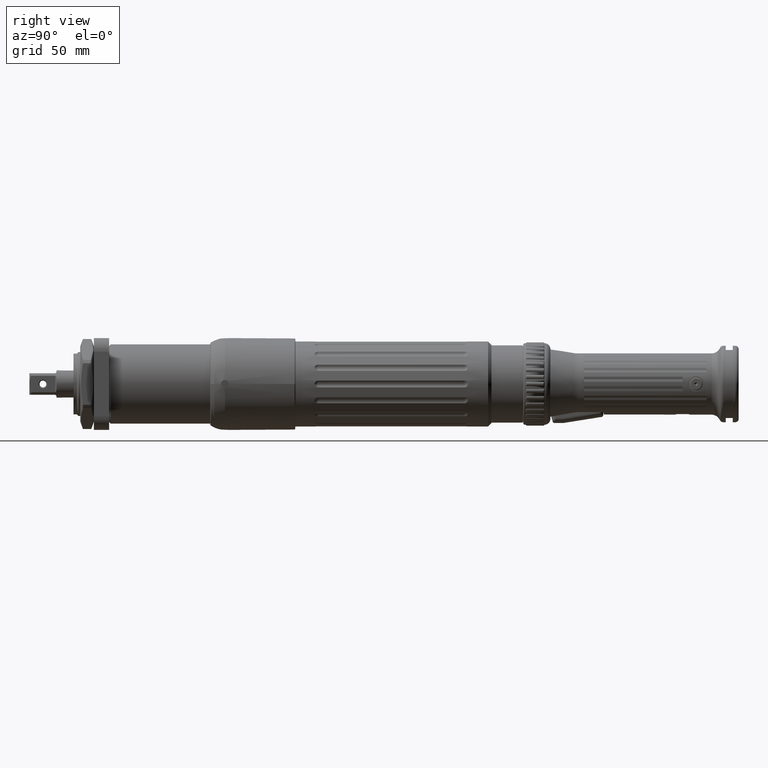
[diagram: clean part render]
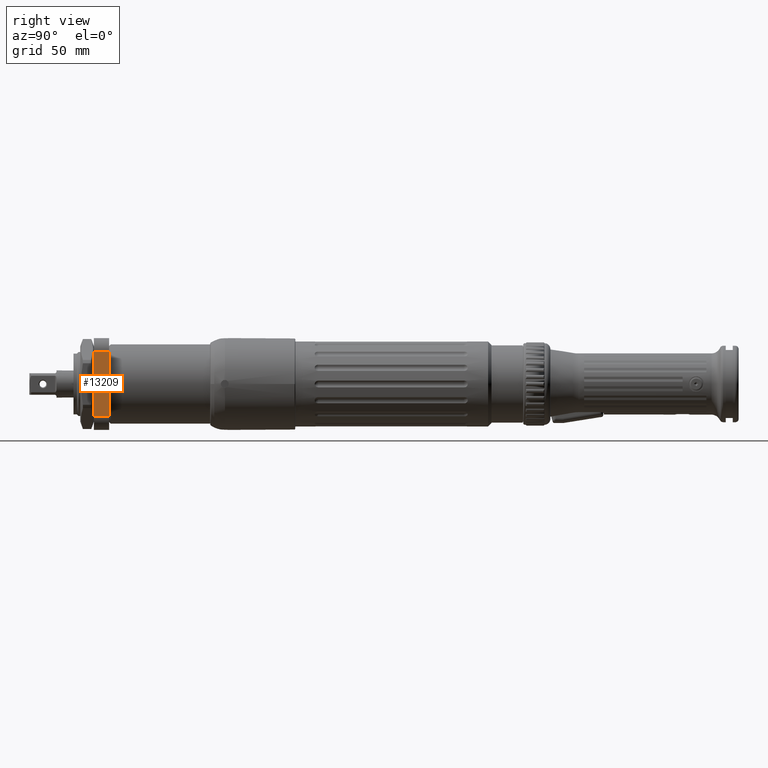
[diagram: same view with one face highlighted and labeled with its STEP entity id]
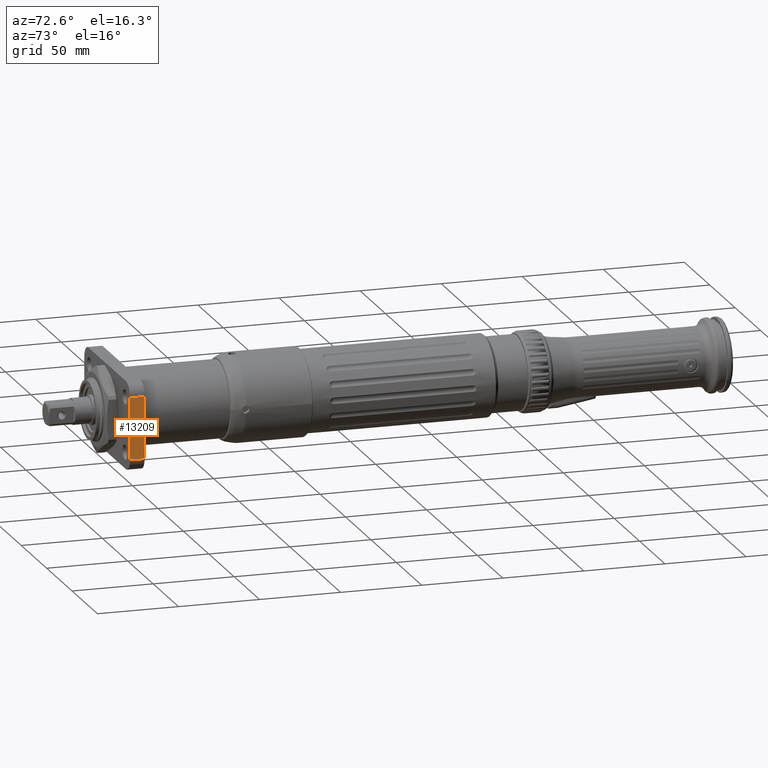
[diagram: same view with one face highlighted and labeled with its STEP entity id]
A machine part, right view. The second image highlights one B-rep face of the part: STEP entity #13209.
A second angle (auxiliary view) of the same face is appended — the face is thin or edge-on in the first view.
In plain terms, the highlighted planar face has unit normal (1, 0, 0).
Its self-contained STEP definition (entity closure, byte-faithful):
#158=LINE('',#21040,#901);
#164=LINE('',#21075,#907);
#166=LINE('',#21093,#909);
#167=LINE('',#21095,#910);
#901=VECTOR('',#16137,10.);
#907=VECTOR('',#16167,10.);
#909=VECTOR('',#16191,10.);
#910=VECTOR('',#16194,10.);
#2866=PLANE('',#14156);
#3611=FACE_OUTER_BOUND('',#4486,.T.);
#4486=EDGE_LOOP('',(#8915,#8916,#8917,#8918));
#5703=VERTEX_POINT('',#21037);
#5704=VERTEX_POINT('',#21039);
#5720=VERTEX_POINT('',#21072);
#5721=VERTEX_POINT('',#21074);
#6957=EDGE_CURVE('',#5703,#5704,#158,.T.);
#6974=EDGE_CURVE('',#5720,#5721,#164,.T.);
#6982=EDGE_CURVE('',#5703,#5721,#166,.T.);
#6983=EDGE_CURVE('',#5704,#5720,#167,.T.);
#8915=ORIENTED_EDGE('',*,*,#6957,.F.);
#8916=ORIENTED_EDGE('',*,*,#6982,.T.);
#8917=ORIENTED_EDGE('',*,*,#6974,.F.);
#8918=ORIENTED_EDGE('',*,*,#6983,.F.);
#13209=ADVANCED_FACE('',(#3611),#2866,.T.);
#14156=AXIS2_PLACEMENT_3D('',#21094,#16192,#16193);
#16137=DIRECTION('',(0.,0.,-1.));
#16167=DIRECTION('',(0.,0.,1.));
#16191=DIRECTION('',(0.,-1.,0.));
#16192=DIRECTION('center_axis',(1.,0.,0.));
#16193=DIRECTION('ref_axis',(0.,0.,1.));
#16194=DIRECTION('',(0.,-1.,0.));
#21037=CARTESIAN_POINT('',(45.,8.99999999999999,19.));
#21039=CARTESIAN_POINT('',(45.,8.99999999999999,-19.));
#21040=CARTESIAN_POINT('',(45.,8.99999999999999,19.));
#21072=CARTESIAN_POINT('',(45.,-1.77635683940025E-14,-19.));
#21074=CARTESIAN_POINT('',(45.,-1.77635683940025E-14,19.));
#21075=CARTESIAN_POINT('',(45.,-1.77635683940025E-14,19.));
#21093=CARTESIAN_POINT('',(45.,8.99999999999999,19.));
#21094=CARTESIAN_POINT('Origin',(45.,8.99999999999999,-19.));
#21095=CARTESIAN_POINT('',(45.,8.99999999999999,-19.));